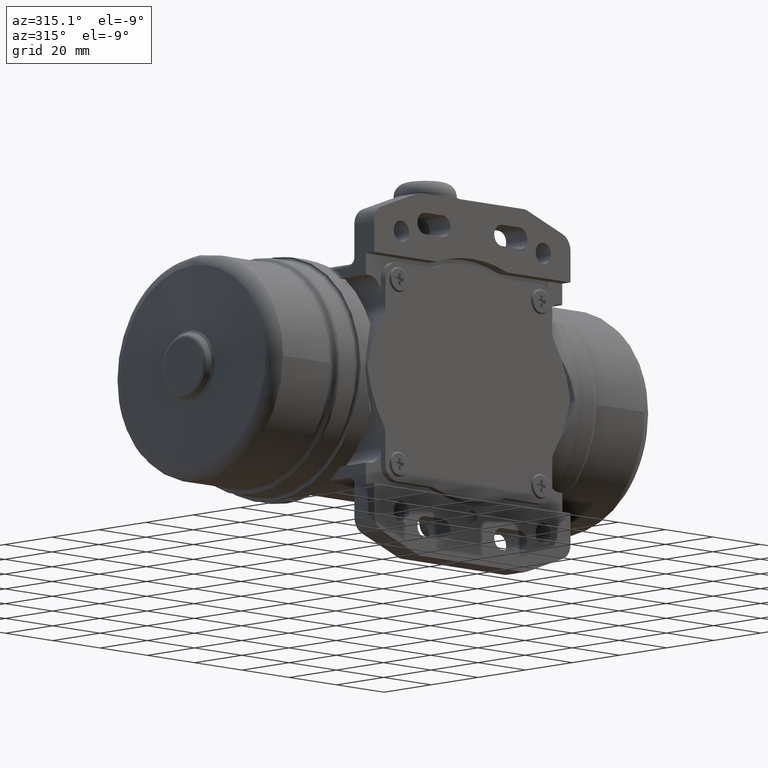
[diagram: clean part render]
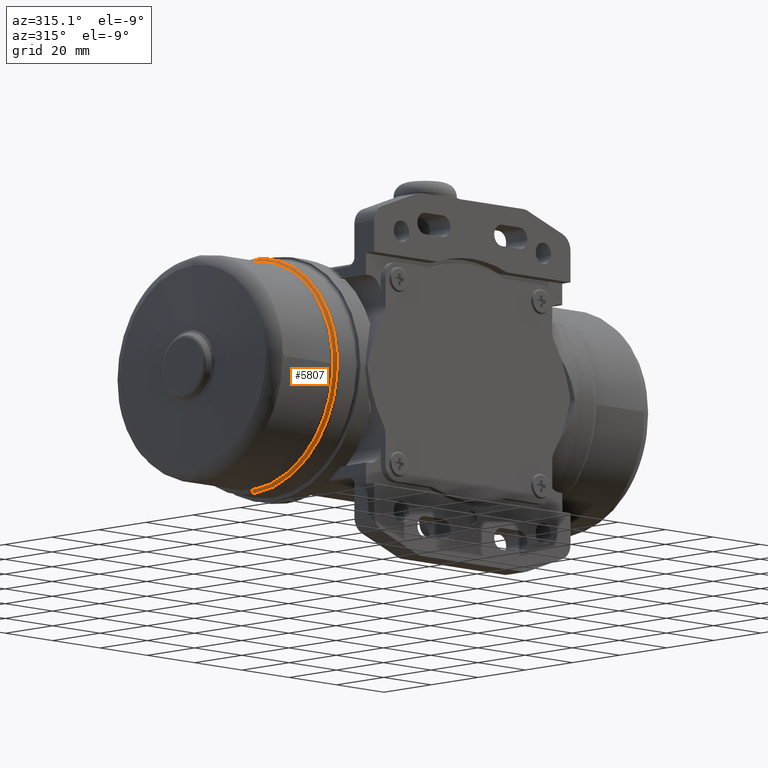
[diagram: same view with one face highlighted and labeled with its STEP entity id]
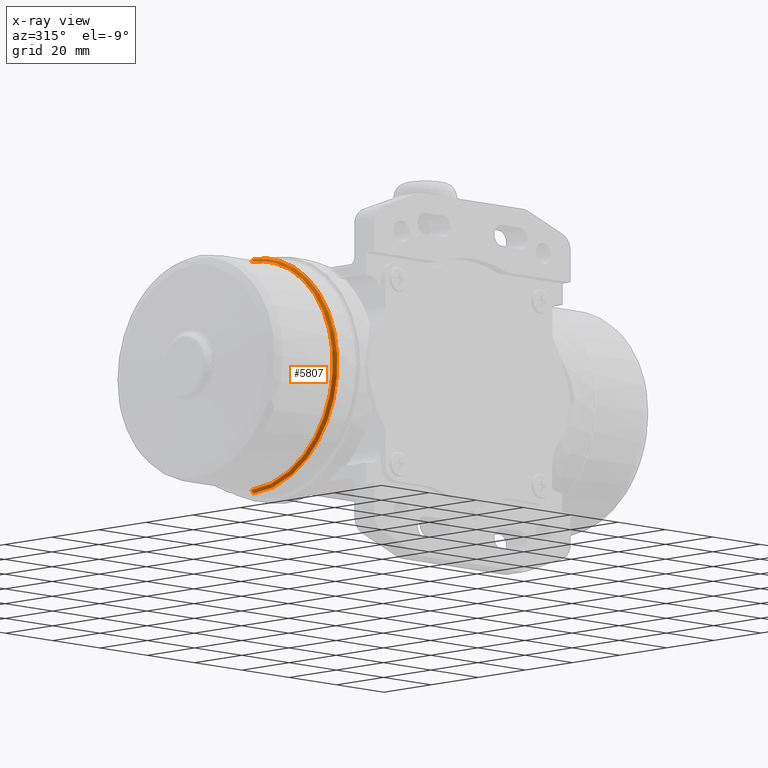
[diagram: x-ray of the same camera — body ghosted, the highlighted face saturated]
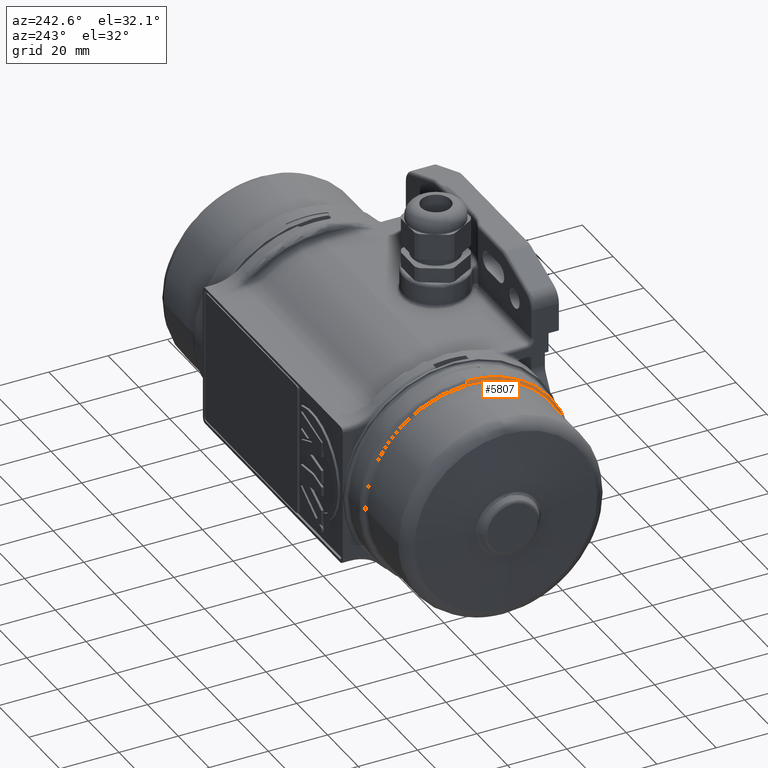
[diagram: same view with one face highlighted and labeled with its STEP entity id]
A machine part, auxiliary view. The second image highlights one B-rep face of the part: STEP entity #5807.
The next image is the same camera in x-ray: the body ghosted, the highlighted face saturated — about 0% of this face is hidden behind the body in this view.
A second angle (auxiliary view) of the same face is appended — the face is thin or edge-on in the first view.
In plain terms, the highlighted conical surface has half-angle 45 deg.
Its self-contained STEP definition (entity closure, byte-faithful):
#1319 = CARTESIAN_POINT ( 'NONE',  ( -54.62426407398109500, 6.591952665171388500E-014, -35.50710676538240300 ) ) ;
#1361 = DIRECTION ( 'NONE',  ( 0.7071067811860860500, 2.763694019692370300E-016, -0.7071067811870089800 ) ) ;
#1362 = VECTOR ( 'NONE', #1361, 1000.000000000000000 ) ;
#1363 = CARTESIAN_POINT ( 'NONE',  ( -54.62426406869960300, -3.469412387358394800E-015, -35.50710678120690000 ) ) ;
#1364 = LINE ( 'NONE', #1363, #1362 ) ;
#1369 = CARTESIAN_POINT ( 'NONE',  ( -55.53847763365740100, 4.857229189194579600E-014, -34.59289320597635300 ) ) ;
#5747 = EDGE_CURVE ( 'NONE', #5777, #5820, #17363, .T. ) ;
#5756 = VERTEX_POINT ( 'NONE', #17470 ) ;
#5765 = EDGE_CURVE ( 'NONE', #5777, #5756, #18056, .T. ) ;
#5777 = VERTEX_POINT ( 'NONE', #18052 ) ;
#5797 = ORIENTED_EDGE ( 'NONE', *, *, #13421, .T. ) ;
#5806 = ORIENTED_EDGE ( 'NONE', *, *, #5822, .T. ) ;
#5807 = ADVANCED_FACE ( 'NONE', ( #18474 ), #18778, .T. ) ;
#5808 = ORIENTED_EDGE ( 'NONE', *, *, #5747, .T. ) ;
#5809 = ORIENTED_EDGE ( 'NONE', *, *, #5814, .F. ) ;
#5810 = ORIENTED_EDGE ( 'NONE', *, *, #5765, .F. ) ;
#5811 = EDGE_CURVE ( 'NONE', #5815, #5820, #18774, .T. ) ;
#5813 = ORIENTED_EDGE ( 'NONE', *, *, #5811, .F. ) ;
#5814 = EDGE_CURVE ( 'NONE', #13423, #5815, #18767, .T. ) ;
#5815 = VERTEX_POINT ( 'NONE', #18775 ) ;
#5818 = EDGE_LOOP ( 'NONE', ( #5806, #5810, #5808, #5813, #5809, #5797 ) ) ;
#5820 = VERTEX_POINT ( 'NONE', #18801 ) ;
#5822 = EDGE_CURVE ( 'NONE', #13406, #5756, #18797, .T. ) ;
#13406 = VERTEX_POINT ( 'NONE', #1319 ) ;
#13421 = EDGE_CURVE ( 'NONE', #13423, #13406, #1364, .T. ) ;
#13423 = VERTEX_POINT ( 'NONE', #1369 ) ;
#17363 = LINE ( 'NONE', #17373, #17412 ) ;
#17373 = CARTESIAN_POINT ( 'NONE',  ( -54.62426406869960300, -1.561247671919604800E-014, 35.50710678120690000 ) ) ;
#17411 = DIRECTION ( 'NONE',  ( -0.7071067811860856100, -4.865291861083235500E-017, -0.7071067811870095400 ) ) ;
#17412 = VECTOR ( 'NONE', #17411, 1000.000000000000100 ) ;
#17470 = CARTESIAN_POINT ( 'NONE',  ( -54.62426407002950400, -0.01867161798814289900, 35.50710187058739800 ) ) ;
#17475 = CARTESIAN_POINT ( 'NONE',  ( -55.53847763108819900, -34.14319413471420000, -6.810364278696618500 ) ) ;
#17769 = CARTESIAN_POINT ( 'NONE',  ( -55.53847763108819900, -2.282271344303945100, 34.59169785592013100 ) ) ;
#17770 = CARTESIAN_POINT ( 'NONE',  ( -55.53847763108819900, -6.810197762145561400, 34.14333176516740300 ) ) ;
#17771 = CARTESIAN_POINT ( 'NONE',  ( -55.53847763108819900, -13.34037532835096400, 32.15867356537654600 ) ) ;
#17772 = CARTESIAN_POINT ( 'NONE',  ( -55.53847763108819900, -19.35788967110664800, 28.93817547631125500 ) ) ;
#17774 = CARTESIAN_POINT ( 'NONE',  ( -55.53847763108819900, -32.17268863676494600, 13.30654949501839800 ) ) ;
#17776 = CARTESIAN_POINT ( 'NONE',  ( -55.53847763108819900, -24.63149147339122900, 24.60559989993027600 ) ) ;
#17777 = CARTESIAN_POINT ( 'NONE',  ( -55.53847763108819900, -28.95851773856326600, 19.32744354723048700 ) ) ;
#17780 = CARTESIAN_POINT ( 'NONE',  ( -55.53847763108819900, -34.15046536820185000, 6.774273111045289400 ) ) ;
#17781 = CARTESIAN_POINT ( 'NONE',  ( -55.53847763108819900, -34.81591777816389300, -0.01826351831615134800 ) ) ;
#17982 = AXIS2_PLACEMENT_3D ( 'NONE', #18054, #18043, #18042 ) ;
#18042 = DIRECTION ( 'NONE',  ( 3.908453564896692800E-016, 0.0000000000000000000, -1.000000000000000000 ) ) ;
#18043 = DIRECTION ( 'NONE',  ( 1.000000000000000000, 1.954226782448344700E-016, 3.908453564896694800E-016 ) ) ;
#18052 = CARTESIAN_POINT ( 'NONE',  ( -54.62426406870969900, -1.908192367114965000E-014, 35.50710677488085300 ) ) ;
#18054 = CARTESIAN_POINT ( 'NONE',  ( -54.62426406870760300, -3.469412387358394800E-015, -2.483263984956054900E-020 ) ) ;
#18056 = CIRCLE ( 'NONE', #17982, 35.50710678119894900 ) ;
#18451 = CARTESIAN_POINT ( 'NONE',  ( -55.53847763185789400, -0.01819087348558545000, 34.59288843515895500 ) ) ;
#18473 = CARTESIAN_POINT ( 'NONE',  ( -54.62426406870760300, -3.469412387358394800E-015, -2.483263984956054900E-020 ) ) ;
#18474 = FACE_OUTER_BOUND ( 'NONE', #5818, .T. ) ;
#18751 = CARTESIAN_POINT ( 'NONE',  ( -55.53847763108819900, -32.15918721032194600, -13.33975387921367800 ) ) ;
#18752 = CARTESIAN_POINT ( 'NONE',  ( -55.53847763108819900, -29.47276550076990600, -18.35800988038393900 ) ) ;
#18753 = CARTESIAN_POINT ( 'NONE',  ( -55.53847763108819900, -26.77200969822366600, -21.99477180118728700 ) ) ;
#18754 = CARTESIAN_POINT ( 'NONE',  ( -55.53847763108819900, -23.72837657979618700, -25.34999169101776700 ) ) ;
#18755 = CARTESIAN_POINT ( 'NONE',  ( -55.53847763108819900, -19.32767628857864000, -28.95891772938066900 ) ) ;
#18756 = CARTESIAN_POINT ( 'NONE',  ( -55.53847763108819900, -14.30671463716754000, -31.63824017551959900 ) ) ;
#18757 = CARTESIAN_POINT ( 'NONE',  ( -55.53847763108819900, -10.04027479721501200, -33.16173085203924800 ) ) ;
#18764 = CARTESIAN_POINT ( 'NONE',  ( -55.53847763108819900, -5.652625325321397800, -34.25904427172263700 ) ) ;
#18765 = CARTESIAN_POINT ( 'NONE',  ( -55.53847763108819900, -2.254444252180741100, -34.59288301911746500 ) ) ;
#18766 = CARTESIAN_POINT ( 'NONE',  ( -55.53847763365740100, 4.857229189194579600E-014, -34.59289320597635300 ) ) ;
#18767 = B_SPLINE_CURVE_WITH_KNOTS ( 'NONE', 3,
 ( #18766, #18765, #18764, #18757, #18756, #18755, #18754, #18753, #18752, #18751, #17475, #17781, #17780, #17774, #17777, #17776, #17772, #17771, #17770, #17769, #18451 ),
 .UNSPECIFIED., .F., .F.,
 ( 4, 1, 1, 1, 1, 1, 1, 1, 1, 1, 1, 1, 1, 1, 1, 1, 1, 1, 4 ),
 ( 0.0000000000000000000, 0.06233340095364751900, 0.09362161721170482500, 0.1249098334697621000, 0.1874108899323868300, 0.2499119463950117100, 0.2812001626530689600, 0.3124883789111261300, 0.3749894353737514600, 0.4374904918363759500, 0.4999915482990007800, 0.5624926047616257700, 0.6249936612242507100, 0.6874947176868755300, 0.7499957741495002500, 0.8124968306121253000, 0.8749978870747501200, 0.9374989435373751700, 1.000000000000000000 ),
 .UNSPECIFIED. ) ;
#18770 = DIRECTION ( 'NONE',  ( 4.011745337856947600E-016, 0.0000000000000000000, -1.000000000000000000 ) ) ;
#18771 = DIRECTION ( 'NONE',  ( -1.000000000000000000, -1.954226782448344700E-016, -3.908453564896694800E-016 ) ) ;
#18772 = CARTESIAN_POINT ( 'NONE',  ( -55.53847763493399700, -3.469412387358394800E-015, -2.483263984956054900E-020 ) ) ;
#18773 = AXIS2_PLACEMENT_3D ( 'NONE', #18772, #18771, #18770 ) ;
#18774 = CIRCLE ( 'NONE', #18773, 34.59289321497135500 ) ;
#18775 = CARTESIAN_POINT ( 'NONE',  ( -55.53847763185789400, -0.01819087348558545000, 34.59288843515895500 ) ) ;
#18776 = DIRECTION ( 'NONE',  ( 3.908453564896692800E-016, 0.0000000000000000000, -1.000000000000000000 ) ) ;
#18777 = DIRECTION ( 'NONE',  ( 1.000000000000000000, 1.954226782448344700E-016, 3.908453564896694800E-016 ) ) ;
#18778 = CONICAL_SURFACE ( 'NONE', #18779, 35.50710678119894900, 0.7853981633980938700 ) ;
#18779 = AXIS2_PLACEMENT_3D ( 'NONE', #18473, #18777, #18776 ) ;
#18781 = CARTESIAN_POINT ( 'NONE',  ( -54.62426407925407500, -35.27707864555473800, -4.656309497044417400 ) ) ;
#18782 = CARTESIAN_POINT ( 'NONE',  ( -54.62426407925408300, -34.36942753135427600, -9.213899666477072300 ) ) ;
#18783 = CARTESIAN_POINT ( 'NONE',  ( -54.62426407925406800, -33.69121481836839400, -11.44794915954263300 ) ) ;
#18784 = CARTESIAN_POINT ( 'NONE',  ( -54.62426407925406800, -31.91200332483816400, -15.74095104154880300 ) ) ;
#18785 = CARTESIAN_POINT ( 'NONE',  ( -54.62426407925409000, -30.81104850938247400, -17.79979734854864400 ) ) ;
#18786 = CARTESIAN_POINT ( 'NONE',  ( -54.62426407925406800, -28.22862792228459500, -21.66328833584906000 ) ) ;
#18787 = CARTESIAN_POINT ( 'NONE',  ( -54.62426407925407500, -26.74722596337654700, -23.46783754760958700 ) ) ;
#18788 = CARTESIAN_POINT ( 'NONE',  ( -54.62426407925406100, -23.46080414425444600, -26.75339538828394100 ) ) ;
#18789 = CARTESIAN_POINT ( 'NONE',  ( -54.62426407925407500, -21.65586549295065700, -28.23432282963677100 ) ) ;
#18790 = CARTESIAN_POINT ( 'NONE',  ( -54.62426407925408300, -17.79169564875048300, -30.81572750786768800 ) ) ;
#18791 = CARTESIAN_POINT ( 'NONE',  ( -54.62426407925407500, -15.73255994116896200, -31.91614095711517500 ) ) ;
#18792 = CARTESIAN_POINT ( 'NONE',  ( -54.62426407925408300, -11.43909040319624300, -33.69422363914063100 ) ) ;
#18793 = CARTESIAN_POINT ( 'NONE',  ( -54.62426407925406800, -9.204862666301801600, -34.37184893472336000 ) ) ;
#18794 = CARTESIAN_POINT ( 'NONE',  ( -54.62426407925406100, -4.647034007595764600, -35.27830169990000500 ) ) ;
#18795 = CARTESIAN_POINT ( 'NONE',  ( -54.62426407925406800, -2.323545711709571900, -35.50710677065249900 ) ) ;
#18796 = CARTESIAN_POINT ( 'NONE',  ( -54.62426407398109500, 6.591952665171388500E-014, -35.50710676538240300 ) ) ;
#18797 = B_SPLINE_CURVE_WITH_KNOTS ( 'NONE', 3,
 ( #18796, #18795, #18794, #18793, #18792, #18791, #18790, #18789, #18788, #18787, #18786, #18785, #18784, #18783, #18782, #18781, #18842, #18841, #18840, #18839, #18838, #18837, #18836, #18835, #18834, #18833, #18832, #18831, #18830, #18829, #18828, #18827, #18826, #18825 ),
 .UNSPECIFIED., .F., .F.,
 ( 4, 2, 2, 2, 2, 2, 2, 2, 2, 2, 2, 2, 2, 2, 2, 2, 4 ),
 ( 0.0000000000000000000, 0.06249999999999998600, 0.1249999999999999700, 0.1875000000000000000, 0.2500000000000000600, 0.3125000000000001100, 0.3750000000000001100, 0.4375000000000001700, 0.5000000000000002200, 0.5625000000000002200, 0.6250000000000002200, 0.6875000000000002200, 0.7500000000000001100, 0.8125000000000001100, 0.8750000000000001100, 0.9375000000000001100, 1.000000000000000000 ),
 .UNSPECIFIED. ) ;
#18801 = CARTESIAN_POINT ( 'NONE',  ( -55.53847763262729100, -2.081664714712644700E-014, 34.59289321112460400 ) ) ;
#18825 = CARTESIAN_POINT ( 'NONE',  ( -54.62426407002950400, -0.01867161798814289900, 35.50710187058739800 ) ) ;
#18826 = CARTESIAN_POINT ( 'NONE',  ( -54.62426407925409700, -2.342217008434599900, 35.50588001137725800 ) ) ;
#18827 = CARTESIAN_POINT ( 'NONE',  ( -54.62426407925408300, -4.665584664597082200, 35.27585315246670900 ) ) ;
#18828 = CARTESIAN_POINT ( 'NONE',  ( -54.62426407925409700, -9.222936029685195400, 34.36700375198941500 ) ) ;
#18829 = CARTESIAN_POINT ( 'NONE',  ( -54.62426407925408300, -11.45680712447956600, 33.68820366848599700 ) ) ;
#18830 = CARTESIAN_POINT ( 'NONE',  ( -54.62426407925409000, -15.74934105373930400, 31.90786348644987700 ) ) ;
#18831 = CARTESIAN_POINT ( 'NONE',  ( -54.62426407925408300, -17.80789781782721400, 30.80636738089617300 ) ) ;
#18832 = CARTESIAN_POINT ( 'NONE',  ( -54.62426407925409700, -21.67070968114055800, 28.22293106345689800 ) ) ;
#18833 = CARTESIAN_POINT ( 'NONE',  ( -54.62426407925410400, -23.47486932860741100, 26.74105468940458500 ) ) ;
#18834 = CARTESIAN_POINT ( 'NONE',  ( -54.62426407925408300, -26.75956296369983900, 23.45376911902866400 ) ) ;
#18835 = CARTESIAN_POINT ( 'NONE',  ( -54.62426407925407500, -28.24001578511934300, 21.64844115295901300 ) ) ;
#18836 = CARTESIAN_POINT ( 'NONE',  ( -54.62426407925408300, -30.82040437602800500, 17.78359271899334400 ) ) ;
#18837 = CARTESIAN_POINT ( 'NONE',  ( -54.62426407925408300, -31.92027638299455100, 15.72416775318042800 ) ) ;
#18838 = CARTESIAN_POINT ( 'NONE',  ( -54.62426407925408300, -33.69723013059447700, 11.43023085605337700 ) ) ;
#18839 = CARTESIAN_POINT ( 'NONE',  ( -54.62426407925407500, -34.37426796192910000, 9.195825029784632700 ) ) ;
#18840 = CARTESIAN_POINT ( 'NONE',  ( -54.62426407925408300, -35.27952231541793500, 4.637758196892861000 ) ) ;
#18841 = CARTESIAN_POINT ( 'NONE',  ( -54.62426407925408300, -35.50771646834395100, 2.314209822080665700 ) ) ;
#18842 = CARTESIAN_POINT ( 'NONE',  ( -54.62426407925407500, -35.50649461831612500, -2.332881440709535100 ) ) ;